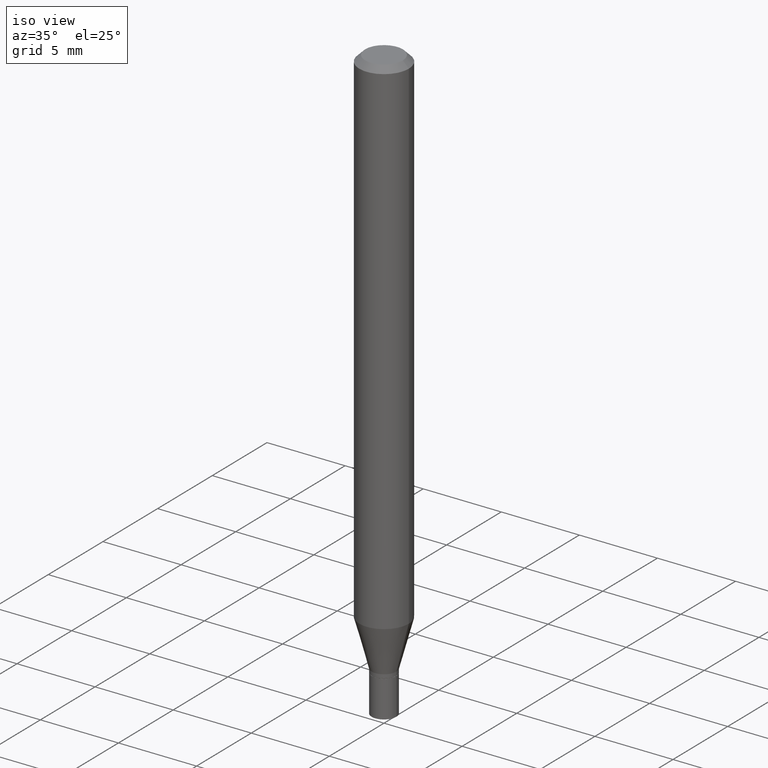
[diagram: clean part render]
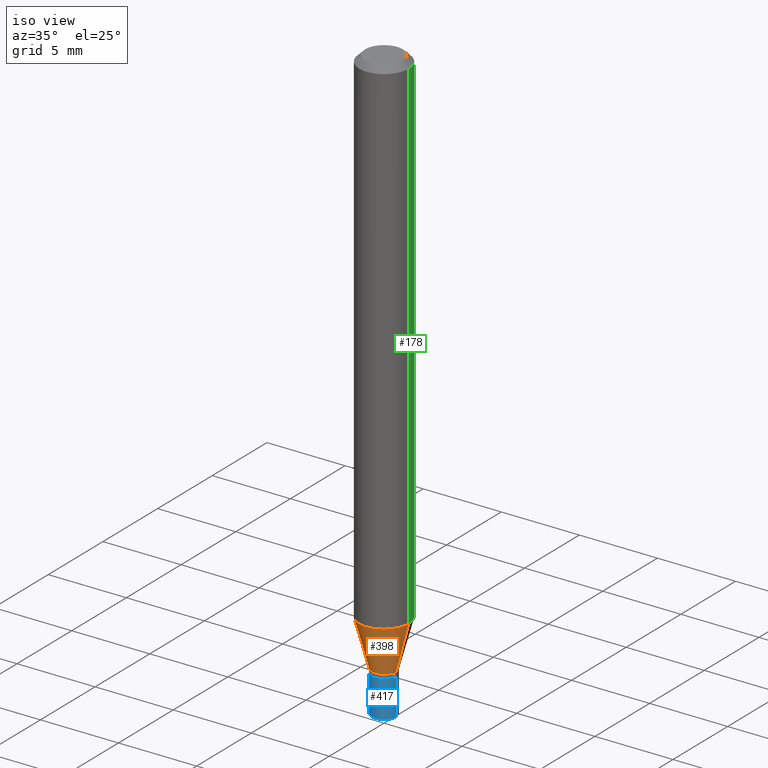
[diagram: same view with three faces highlighted in distinct colors, each labeled with its STEP entity id]
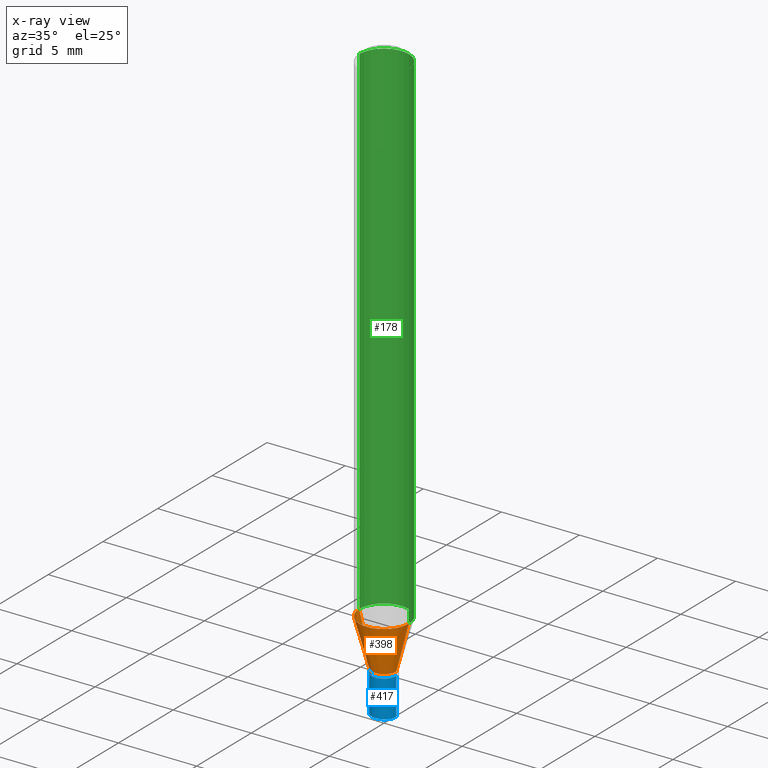
[diagram: x-ray of the same camera — body ghosted, the three highlighted faces saturated]
A machine part, iso view with three faces highlighted in distinct colors.
The next image is the same camera in x-ray (body ghosted, the three faces saturated) — at least one of them is partly hidden behind the body in this view.
Their STEP definitions:

[orange] entity #398 — the highlighted conical surface has half-angle 15 deg.
#12 = EDGE_CURVE ( 'NONE', #307, #347, #278, .T. ) ;
#27 = CIRCLE ( 'NONE', #91, 0.06250000000000000000 ) ;
#33 = DIRECTION ( 'NONE',  ( -0.2588190451025213501, 5.211531920934551042E-15, 0.9659258262890682012 ) ) ;
#47 = VERTEX_POINT ( 'NONE', #458 ) ;
#56 = DIRECTION ( 'NONE',  ( -2.445468806185136597E-29, 3.491481338843145583E-15, 1.000000000000000000 ) ) ;
#81 = DIRECTION ( 'NONE',  ( 1.000000000000000000, -6.982962677686255667E-15, 0.000000000000000000 ) ) ;
#83 = ORIENTED_EDGE ( 'NONE', *, *, #12, .T. ) ;
#85 = CARTESIAN_POINT ( 'NONE',  ( 0.03099999999999992345, -5.094071273372148573E-15, -1.397000000000000242 ) ) ;
#91 = AXIS2_PLACEMENT_3D ( 'NONE', #426, #101, #461 ) ;
#101 = DIRECTION ( 'NONE',  ( -2.445468806185136597E-29, 3.491481338843145583E-15, 1.000000000000000000 ) ) ;
#105 = LINE ( 'NONE', #137, #313 ) ;
#110 = CARTESIAN_POINT ( 'NONE',  ( 0.06250000000000000000, -4.903577446586667063E-15, -1.279440399561580399 ) ) ;
#120 = CIRCLE ( 'NONE', #141, 0.03099999999999992345 ) ;
#123 = DIRECTION ( 'NONE',  ( 1.000000000000000000, -6.982962677686255667E-15, 0.000000000000000000 ) ) ;
#126 = VERTEX_POINT ( 'NONE', #427 ) ;
#131 = EDGE_CURVE ( 'NONE', #126, #47, #105, .T. ) ;
#137 = CARTESIAN_POINT ( 'NONE',  ( -0.03099999999999992345, -4.657331182278244567E-15, -1.397000000000000242 ) ) ;
#141 = AXIS2_PLACEMENT_3D ( 'NONE', #152, #300, #81 ) ;
#145 = EDGE_CURVE ( 'NONE', #47, #347, #27, .T. ) ;
#152 = CARTESIAN_POINT ( 'NONE',  ( 3.416319922240636557E-29, -4.877599430363875031E-15, -1.397000000000000242 ) ) ;
#156 = VECTOR ( 'NONE', #394, 39.37007874015747433 ) ;
#190 = ORIENTED_EDGE ( 'NONE', *, *, #131, .F. ) ;
#205 = ORIENTED_EDGE ( 'NONE', *, *, #276, .T. ) ;
#214 = CARTESIAN_POINT ( 'NONE',  ( 0.03099999999999992345, -5.094071273372148573E-15, -1.397000000000000242 ) ) ;
#229 = ORIENTED_EDGE ( 'NONE', *, *, #145, .F. ) ;
#276 = EDGE_CURVE ( 'NONE', #126, #307, #120, .T. ) ;
#278 = LINE ( 'NONE', #214, #156 ) ;
#288 = CONICAL_SURFACE ( 'NONE', #362, 0.03099999999999992345, 0.2617993877991500740 ) ;
#300 = DIRECTION ( 'NONE',  ( -2.445468806185136597E-29, 3.491481338843145583E-15, 1.000000000000000000 ) ) ;
#307 = VERTEX_POINT ( 'NONE', #85 ) ;
#310 = EDGE_LOOP ( 'NONE', ( #190, #205, #83, #229 ) ) ;
#313 = VECTOR ( 'NONE', #33, 39.37007874015747433 ) ;
#347 = VERTEX_POINT ( 'NONE', #110 ) ;
#362 = AXIS2_PLACEMENT_3D ( 'NONE', #413, #56, #123 ) ;
#394 = DIRECTION ( 'NONE',  ( 0.2588190451025213501, 1.565188264969621968E-15, 0.9659258262890682012 ) ) ;
#398 = ADVANCED_FACE ( 'NONE', ( #450 ), #288, .T. ) ;
#413 = CARTESIAN_POINT ( 'NONE',  ( 3.416319922240636557E-29, -4.877599430363875031E-15, -1.397000000000000242 ) ) ;
#426 = CARTESIAN_POINT ( 'NONE',  ( 3.128831586500892254E-29, -4.467142279231276182E-15, -1.279440399561580399 ) ) ;
#427 = CARTESIAN_POINT ( 'NONE',  ( -0.03099999999999992345, -4.340192125829728277E-15, -1.397000000000000242 ) ) ;
#450 = FACE_OUTER_BOUND ( 'NONE', #310, .T. ) ;
#458 = CARTESIAN_POINT ( 'NONE',  ( -0.06250000000000000000, -4.023053069381213566E-15, -1.279440399561580399 ) ) ;
#461 = DIRECTION ( 'NONE',  ( 1.000000000000000000, -6.982962677686262766E-15, 0.000000000000000000 ) ) ;

[blue] entity #417 — the highlighted cylindrical surface (edge-blend (fillet) strip) has radius 0.7874 mm, axis along (-0, 0, 1).
#2 = CIRCLE ( 'NONE', #55, 0.03099999999999999978 ) ;
#16 = CYLINDRICAL_SURFACE ( 'NONE', #321, 0.03099999999999999978 ) ;
#18 = VECTOR ( 'NONE', #175, 39.37007874015748143 ) ;
#25 = LINE ( 'NONE', #353, #18 ) ;
#35 = EDGE_CURVE ( 'NONE', #371, #223, #25, .T. ) ;
#55 = AXIS2_PLACEMENT_3D ( 'NONE', #456, #360, #324 ) ;
#62 = ORIENTED_EDGE ( 'NONE', *, *, #429, .F. ) ;
#89 = FACE_OUTER_BOUND ( 'NONE', #234, .T. ) ;
#103 = DIRECTION ( 'NONE',  ( -2.445468806185136597E-29, 3.491481338843145583E-15, 1.000000000000000000 ) ) ;
#116 = CARTESIAN_POINT ( 'NONE',  ( -0.03099999999999999978, -4.854599877922879992E-15, -1.407000000000000028 ) ) ;
#121 = EDGE_CURVE ( 'NONE', #372, #371, #444, .T. ) ;
#130 = EDGE_CURVE ( 'NONE', #312, #223, #2, .T. ) ;
#155 = CARTESIAN_POINT ( 'NONE',  ( 0.03099999999999999978, -5.128986086760580222E-15, -1.407000000000000028 ) ) ;
#162 = DIRECTION ( 'NONE',  ( -2.445468806185136877E-29, 3.491481338843145188E-15, 1.000000000000000000 ) ) ;
#171 = ORIENTED_EDGE ( 'NONE', *, *, #35, .T. ) ;
#175 = DIRECTION ( 'NONE',  ( -2.445468806185136877E-29, 3.491481338843145188E-15, 1.000000000000000000 ) ) ;
#196 = ORIENTED_EDGE ( 'NONE', *, *, #130, .F. ) ;
#201 = DIRECTION ( 'NONE',  ( -2.445468806185136597E-29, 3.491481338843145583E-15, 1.000000000000000000 ) ) ;
#223 = VERTEX_POINT ( 'NONE', #155 ) ;
#234 = EDGE_LOOP ( 'NONE', ( #62, #339, #171, #196 ) ) ;
#235 = CARTESIAN_POINT ( 'NONE',  ( -0.03099999999999999978, -4.854599877922879992E-15, -1.500000000000000222 ) ) ;
#237 = CARTESIAN_POINT ( 'NONE',  ( 0.000000000000000000, 0.000000000000000000, 0.000000000000000000 ) ) ;
#250 = CARTESIAN_POINT ( 'NONE',  ( 3.668203209277704895E-29, -5.237222008264718177E-15, -1.500000000000000222 ) ) ;
#257 = DIRECTION ( 'NONE',  ( 1.000000000000000000, -6.982962677686270655E-15, 0.000000000000000000 ) ) ;
#271 = VECTOR ( 'NONE', #162, 39.37007874015748143 ) ;
#279 = LINE ( 'NONE', #380, #271 ) ;
#302 = AXIS2_PLACEMENT_3D ( 'NONE', #250, #103, #257 ) ;
#312 = VERTEX_POINT ( 'NONE', #116 ) ;
#321 = AXIS2_PLACEMENT_3D ( 'NONE', #237, #201, #386 ) ;
#324 = DIRECTION ( 'NONE',  ( 1.000000000000000000, -6.982962677686270655E-15, 0.000000000000000000 ) ) ;
#339 = ORIENTED_EDGE ( 'NONE', *, *, #121, .T. ) ;
#353 = CARTESIAN_POINT ( 'NONE',  ( 0.03099999999999999978, -2.164718430082742572E-16, 1.511614800496739984E-30 ) ) ;
#360 = DIRECTION ( 'NONE',  ( -2.445468806185136597E-29, 3.491481338843145583E-15, 1.000000000000000000 ) ) ;
#371 = VERTEX_POINT ( 'NONE', #415 ) ;
#372 = VERTEX_POINT ( 'NONE', #235 ) ;
#380 = CARTESIAN_POINT ( 'NONE',  ( -0.03099999999999999978, 2.202682480856310560E-16, -1.524869877979020612E-30 ) ) ;
#386 = DIRECTION ( 'NONE',  ( 1.000000000000000000, -6.982962677686266711E-15, 4.876176775795935232E-29 ) ) ;
#415 = CARTESIAN_POINT ( 'NONE',  ( 0.03099999999999999978, -5.453693851272993297E-15, -1.500000000000000222 ) ) ;
#417 = ADVANCED_FACE ( 'NONE', ( #89 ), #16, .T. ) ;
#429 = EDGE_CURVE ( 'NONE', #372, #312, #279, .T. ) ;
#444 = CIRCLE ( 'NONE', #302, 0.03099999999999999978 ) ;
#456 = CARTESIAN_POINT ( 'NONE',  ( 3.440774610302487541E-29, -4.912514243752305891E-15, -1.407000000000000028 ) ) ;

[green] entity #178 — the highlighted cylindrical surface (edge-blend (fillet) strip) has radius 1.5875 mm, axis along (-0, 0, 1).
#8 = DIRECTION ( 'NONE',  ( 1.000000000000000000, -6.982962677686262766E-15, 0.000000000000000000 ) ) ;
#28 = AXIS2_PLACEMENT_3D ( 'NONE', #260, #403, #8 ) ;
#29 = EDGE_CURVE ( 'NONE', #347, #369, #102, .T. ) ;
#47 = VERTEX_POINT ( 'NONE', #458 ) ;
#68 = DIRECTION ( 'NONE',  ( -2.445468806185136597E-29, 3.491481338843145583E-15, 1.000000000000000000 ) ) ;
#72 = DIRECTION ( 'NONE',  ( 1.000000000000000000, -6.982962677686266711E-15, 4.876176775795935793E-29 ) ) ;
#76 = DIRECTION ( 'NONE',  ( -2.445468806185136597E-29, 3.491481338843145583E-15, 1.000000000000000000 ) ) ;
#86 = ORIENTED_EDGE ( 'NONE', *, *, #132, .F. ) ;
#87 = CARTESIAN_POINT ( 'NONE',  ( 0.06250000000000000000, -4.888073874380388472E-16, -0.01499999999999999944 ) ) ;
#102 = LINE ( 'NONE', #326, #423 ) ;
#110 = CARTESIAN_POINT ( 'NONE',  ( 0.06250000000000000000, -4.903577446586667063E-15, -1.279440399561580399 ) ) ;
#132 = EDGE_CURVE ( 'NONE', #369, #432, #241, .T. ) ;
#136 = CARTESIAN_POINT ( 'NONE',  ( 0.000000000000000000, 0.000000000000000000, 0.000000000000000000 ) ) ;
#143 = DIRECTION ( 'NONE',  ( 1.000000000000000000, -6.982962677686266711E-15, 0.000000000000000000 ) ) ;
#177 = CYLINDRICAL_SURFACE ( 'NONE', #218, 0.06250000000000000000 ) ;
#178 = ADVANCED_FACE ( 'NONE', ( #397 ), #177, .T. ) ;
#187 = VECTOR ( 'NONE', #410, 39.37007874015748143 ) ;
#211 = DIRECTION ( 'NONE',  ( -2.445468806185136877E-29, 3.491481338843145188E-15, 1.000000000000000000 ) ) ;
#218 = AXIS2_PLACEMENT_3D ( 'NONE', #136, #68, #72 ) ;
#228 = EDGE_LOOP ( 'NONE', ( #373, #299, #86, #259 ) ) ;
#241 = CIRCLE ( 'NONE', #319, 0.06250000000000000000 ) ;
#252 = CARTESIAN_POINT ( 'NONE',  ( 3.668203209277705088E-31, -5.237222008264718399E-17, -0.01499999999999999944 ) ) ;
#259 = ORIENTED_EDGE ( 'NONE', *, *, #29, .F. ) ;
#260 = CARTESIAN_POINT ( 'NONE',  ( 3.128831586500892254E-29, -4.467142279231276182E-15, -1.279440399561580399 ) ) ;
#267 = EDGE_CURVE ( 'NONE', #47, #432, #439, .T. ) ;
#299 = ORIENTED_EDGE ( 'NONE', *, *, #267, .T. ) ;
#319 = AXIS2_PLACEMENT_3D ( 'NONE', #252, #76, #143 ) ;
#326 = CARTESIAN_POINT ( 'NONE',  ( 0.06250000000000000000, -4.364351673553916694E-16, 3.047610484872459871E-30 ) ) ;
#345 = CARTESIAN_POINT ( 'NONE',  ( -0.06250000000000000000, -1.815668039806898817E-15, -0.01499999999999999944 ) ) ;
#347 = VERTEX_POINT ( 'NONE', #110 ) ;
#354 = EDGE_CURVE ( 'NONE', #347, #47, #402, .T. ) ;
#369 = VERTEX_POINT ( 'NONE', #87 ) ;
#370 = CARTESIAN_POINT ( 'NONE',  ( -0.06250000000000000000, 4.440892098500626162E-16, -3.074334431409316114E-30 ) ) ;
#373 = ORIENTED_EDGE ( 'NONE', *, *, #354, .T. ) ;
#397 = FACE_OUTER_BOUND ( 'NONE', #228, .T. ) ;
#402 = CIRCLE ( 'NONE', #28, 0.06250000000000000000 ) ;
#403 = DIRECTION ( 'NONE',  ( -2.445468806185136597E-29, 3.491481338843145583E-15, 1.000000000000000000 ) ) ;
#410 = DIRECTION ( 'NONE',  ( -2.445468806185136877E-29, 3.491481338843145188E-15, 1.000000000000000000 ) ) ;
#423 = VECTOR ( 'NONE', #211, 39.37007874015748143 ) ;
#432 = VERTEX_POINT ( 'NONE', #345 ) ;
#439 = LINE ( 'NONE', #370, #187 ) ;
#458 = CARTESIAN_POINT ( 'NONE',  ( -0.06250000000000000000, -4.023053069381213566E-15, -1.279440399561580399 ) ) ;